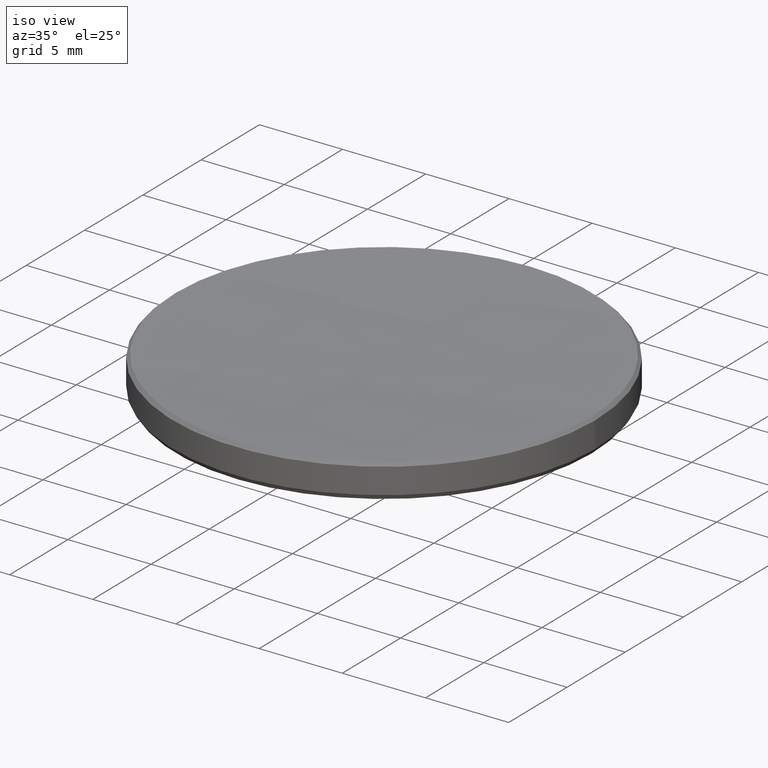
[diagram: clean part render]
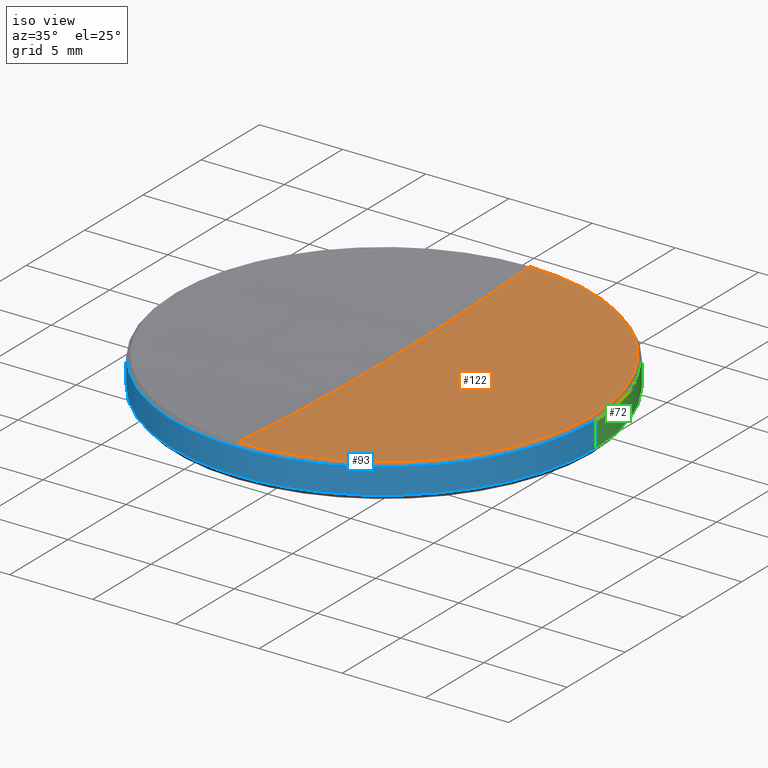
[diagram: same view with three faces highlighted in distinct colors, each labeled with its STEP entity id]
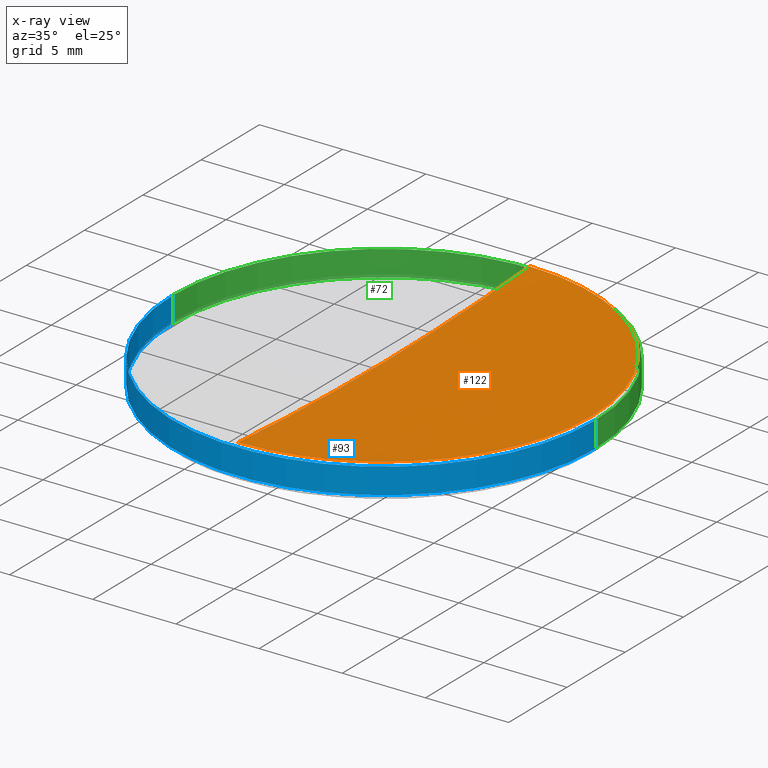
[diagram: x-ray of the same camera — body ghosted, the three highlighted faces saturated]
A machine part, iso view with three faces highlighted in distinct colors.
The next image is the same camera in x-ray (body ghosted, the three faces saturated) — at least one of them is partly hidden behind the body in this view.
Their STEP definitions:

[orange] entity #122 — the highlighted spherical surface has radius 182.19 mm.
#8 = EDGE_CURVE ( 'NONE', #210, #113, #48, .T. ) ;
#12 = DIRECTION ( 'NONE',  ( -0.000000000000000000, -0.000000000000000000, 1.000000000000000000 ) ) ;
#18 = DIRECTION ( 'NONE',  ( -0.000000000000000000, -0.000000000000000000, 1.000000000000000000 ) ) ;
#25 = ORIENTED_EDGE ( 'NONE', *, *, #183, .T. ) ;
#28 = AXIS2_PLACEMENT_3D ( 'NONE', #252, #18, #49 ) ;
#44 = EDGE_CURVE ( 'NONE', #113, #219, #174, .T. ) ;
#48 = CIRCLE ( 'NONE', #120, 182.1899999999999977 ) ;
#49 = DIRECTION ( 'NONE',  ( 1.000000000000000000, 0.000000000000000000, 0.000000000000000000 ) ) ;
#58 = CARTESIAN_POINT ( 'NONE',  ( 0.000000000000000000, 0.000000000000000000, 187.7468186791724918 ) ) ;
#61 = AXIS2_PLACEMENT_3D ( 'NONE', #245, #12, #322 ) ;
#64 = AXIS2_PLACEMENT_3D ( 'NONE', #58, #136, #109 ) ;
#94 = CARTESIAN_POINT ( 'NONE',  ( 0.000000000000000000, 1.115592001683281265E-14, 5.556818679172486952 ) ) ;
#99 = ORIENTED_EDGE ( 'NONE', *, *, #8, .T. ) ;
#101 = CIRCLE ( 'NONE', #64, 182.1899999999999977 ) ;
#109 = DIRECTION ( 'NONE',  ( 0.000000000000000000, 0.000000000000000000, -1.000000000000000000 ) ) ;
#110 = AXIS2_PLACEMENT_3D ( 'NONE', #128, #154, #305 ) ;
#113 = VERTEX_POINT ( 'NONE', #172 ) ;
#120 = AXIS2_PLACEMENT_3D ( 'NONE', #221, #326, #323 ) ;
#122 = ADVANCED_FACE ( 'NONE', ( #304 ), #148, .F. ) ;
#128 = CARTESIAN_POINT ( 'NONE',  ( 0.000000000000000000, 0.000000000000000000, 187.7468186791724918 ) ) ;
#136 = DIRECTION ( 'NONE',  ( 1.000000000000000000, 0.000000000000000000, 0.000000000000000000 ) ) ;
#148 = SPHERICAL_SURFACE ( 'NONE', #110, 182.1899999999999977 ) ;
#154 = DIRECTION ( 'NONE',  ( -1.000000000000000000, 0.000000000000000000, 0.000000000000000000 ) ) ;
#156 = ORIENTED_EDGE ( 'NONE', *, *, #278, .F. ) ;
#158 = ORIENTED_EDGE ( 'NONE', *, *, #44, .T. ) ;
#160 = CARTESIAN_POINT ( 'NONE',  ( 12.51297231911478569, 1.543849292379736932E-15, 5.987027680885187664 ) ) ;
#172 = CARTESIAN_POINT ( 'NONE',  ( -1.532397149842306047E-15, -12.51297231911454411, 5.987027680885187664 ) ) ;
#174 = CIRCLE ( 'NONE', #61, 12.51297231911478569 ) ;
#183 = EDGE_CURVE ( 'NONE', #219, #273, #209, .T. ) ;
#196 = EDGE_LOOP ( 'NONE', ( #156, #99, #158, #25 ) ) ;
#209 = CIRCLE ( 'NONE', #28, 12.51297231911478569 ) ;
#210 = VERTEX_POINT ( 'NONE', #94 ) ;
#219 = VERTEX_POINT ( 'NONE', #160 ) ;
#221 = CARTESIAN_POINT ( 'NONE',  ( 0.000000000000000000, 0.000000000000000000, 187.7468186791724918 ) ) ;
#245 = CARTESIAN_POINT ( 'NONE',  ( 0.000000000000000000, 0.000000000000000000, 5.987027680885187664 ) ) ;
#252 = CARTESIAN_POINT ( 'NONE',  ( 0.000000000000000000, 0.000000000000000000, 5.987027680885187664 ) ) ;
#273 = VERTEX_POINT ( 'NONE', #321 ) ;
#278 = EDGE_CURVE ( 'NONE', #210, #273, #101, .T. ) ;
#304 = FACE_OUTER_BOUND ( 'NONE', #196, .T. ) ;
#305 = DIRECTION ( 'NONE',  ( 0.000000000000000000, 1.000000000000000000, 0.000000000000000000 ) ) ;
#321 = CARTESIAN_POINT ( 'NONE',  ( 0.000000000000000000, 12.51297231911454411, 5.987027680885187664 ) ) ;
#322 = DIRECTION ( 'NONE',  ( 1.000000000000000000, 0.000000000000000000, 0.000000000000000000 ) ) ;
#323 = DIRECTION ( 'NONE',  ( -1.224646799147352961E-16, -1.000000000000000000, 0.000000000000000000 ) ) ;
#326 = DIRECTION ( 'NONE',  ( -1.000000000000000000, 1.224646799147353207E-16, 0.000000000000000000 ) ) ;

[blue] entity #93 — the highlighted cylindrical surface (partial cylindrical patch) has radius 12.7 mm, axis along (-0, -0, -1).
#20 = AXIS2_PLACEMENT_3D ( 'NONE', #163, #328, #292 ) ;
#21 = LINE ( 'NONE', #151, #181 ) ;
#22 = DIRECTION ( 'NONE',  ( -0.000000000000000000, -0.000000000000000000, -1.000000000000000000 ) ) ;
#33 = EDGE_CURVE ( 'NONE', #52, #309, #251, .T. ) ;
#46 = DIRECTION ( 'NONE',  ( -0.000000000000000000, -0.000000000000000000, -1.000000000000000000 ) ) ;
#50 = FACE_OUTER_BOUND ( 'NONE', #193, .T. ) ;
#52 = VERTEX_POINT ( 'NONE', #295 ) ;
#75 = VERTEX_POINT ( 'NONE', #205 ) ;
#77 = VERTEX_POINT ( 'NONE', #280 ) ;
#91 = CARTESIAN_POINT ( 'NONE',  ( 12.69999999999999929, 1.555301434917138433E-15, 4.253353967830220128 ) ) ;
#93 = ADVANCED_FACE ( 'NONE', ( #50 ), #225, .T. ) ;
#96 = DIRECTION ( 'NONE',  ( -1.000000000000000000, 0.000000000000000000, 0.000000000000000000 ) ) ;
#98 = LINE ( 'NONE', #228, #275 ) ;
#105 = ORIENTED_EDGE ( 'NONE', *, *, #123, .F. ) ;
#123 = EDGE_CURVE ( 'NONE', #75, #309, #21, .T. ) ;
#126 = CARTESIAN_POINT ( 'NONE',  ( 0.000000000000000000, 0.000000000000000000, 5.800000000000027356 ) ) ;
#132 = AXIS2_PLACEMENT_3D ( 'NONE', #126, #150, #274 ) ;
#150 = DIRECTION ( 'NONE',  ( 0.000000000000000000, 0.000000000000000000, -1.000000000000000000 ) ) ;
#151 = CARTESIAN_POINT ( 'NONE',  ( 12.69999999999999929, 1.555301434917138433E-15, 10.00000000000000000 ) ) ;
#153 = ORIENTED_EDGE ( 'NONE', *, *, #162, .T. ) ;
#155 = EDGE_CURVE ( 'NONE', #75, #77, #171, .T. ) ;
#162 = EDGE_CURVE ( 'NONE', #77, #52, #98, .T. ) ;
#163 = CARTESIAN_POINT ( 'NONE',  ( 0.000000000000000000, 0.000000000000000000, 4.253353967830220128 ) ) ;
#171 = CIRCLE ( 'NONE', #132, 12.69999999999999929 ) ;
#181 = VECTOR ( 'NONE', #22, 1000.000000000000000 ) ;
#193 = EDGE_LOOP ( 'NONE', ( #105, #236, #153, #297 ) ) ;
#205 = CARTESIAN_POINT ( 'NONE',  ( 12.69999999999999929, 1.555301434917138433E-15, 5.800000000000027356 ) ) ;
#206 = CARTESIAN_POINT ( 'NONE',  ( 0.000000000000000000, 0.000000000000000000, 10.00000000000000000 ) ) ;
#225 = CYLINDRICAL_SURFACE ( 'NONE', #317, 12.69999999999999929 ) ;
#227 = DIRECTION ( 'NONE',  ( -0.000000000000000000, -0.000000000000000000, -1.000000000000000000 ) ) ;
#228 = CARTESIAN_POINT ( 'NONE',  ( -12.69999999999999929, 0.000000000000000000, 10.00000000000000000 ) ) ;
#236 = ORIENTED_EDGE ( 'NONE', *, *, #155, .T. ) ;
#251 = CIRCLE ( 'NONE', #20, 12.69999999999999929 ) ;
#274 = DIRECTION ( 'NONE',  ( 1.000000000000000000, 0.000000000000000000, 0.000000000000000000 ) ) ;
#275 = VECTOR ( 'NONE', #46, 1000.000000000000000 ) ;
#280 = CARTESIAN_POINT ( 'NONE',  ( -12.69999999999999929, 0.000000000000000000, 5.800000000000027356 ) ) ;
#292 = DIRECTION ( 'NONE',  ( -1.000000000000000000, 0.000000000000000000, 0.000000000000000000 ) ) ;
#295 = CARTESIAN_POINT ( 'NONE',  ( -12.69999999999999929, 0.000000000000000000, 4.253353967830220128 ) ) ;
#297 = ORIENTED_EDGE ( 'NONE', *, *, #33, .T. ) ;
#309 = VERTEX_POINT ( 'NONE', #91 ) ;
#317 = AXIS2_PLACEMENT_3D ( 'NONE', #206, #227, #96 ) ;
#328 = DIRECTION ( 'NONE',  ( -0.000000000000000000, -0.000000000000000000, 1.000000000000000000 ) ) ;

[green] entity #72 — the highlighted cylindrical surface (partial cylindrical patch) has radius 12.7 mm, axis along (-0, -0, -1).
#19 = EDGE_CURVE ( 'NONE', #309, #52, #87, .T. ) ;
#21 = LINE ( 'NONE', #151, #181 ) ;
#22 = DIRECTION ( 'NONE',  ( -0.000000000000000000, -0.000000000000000000, -1.000000000000000000 ) ) ;
#26 = ORIENTED_EDGE ( 'NONE', *, *, #123, .T. ) ;
#46 = DIRECTION ( 'NONE',  ( -0.000000000000000000, -0.000000000000000000, -1.000000000000000000 ) ) ;
#52 = VERTEX_POINT ( 'NONE', #295 ) ;
#72 = ADVANCED_FACE ( 'NONE', ( #268 ), #168, .T. ) ;
#75 = VERTEX_POINT ( 'NONE', #205 ) ;
#77 = VERTEX_POINT ( 'NONE', #280 ) ;
#84 = DIRECTION ( 'NONE',  ( 1.000000000000000000, 0.000000000000000000, 0.000000000000000000 ) ) ;
#87 = CIRCLE ( 'NONE', #277, 12.69999999999999929 ) ;
#91 = CARTESIAN_POINT ( 'NONE',  ( 12.69999999999999929, 1.555301434917138433E-15, 4.253353967830220128 ) ) ;
#95 = CIRCLE ( 'NONE', #107, 12.69999999999999929 ) ;
#98 = LINE ( 'NONE', #228, #275 ) ;
#104 = AXIS2_PLACEMENT_3D ( 'NONE', #271, #244, #301 ) ;
#107 = AXIS2_PLACEMENT_3D ( 'NONE', #165, #195, #84 ) ;
#123 = EDGE_CURVE ( 'NONE', #75, #309, #21, .T. ) ;
#144 = DIRECTION ( 'NONE',  ( -1.000000000000000000, 0.000000000000000000, 0.000000000000000000 ) ) ;
#146 = ORIENTED_EDGE ( 'NONE', *, *, #19, .T. ) ;
#151 = CARTESIAN_POINT ( 'NONE',  ( 12.69999999999999929, 1.555301434917138433E-15, 10.00000000000000000 ) ) ;
#162 = EDGE_CURVE ( 'NONE', #77, #52, #98, .T. ) ;
#165 = CARTESIAN_POINT ( 'NONE',  ( 0.000000000000000000, 0.000000000000000000, 5.800000000000027356 ) ) ;
#168 = CYLINDRICAL_SURFACE ( 'NONE', #104, 12.69999999999999929 ) ;
#181 = VECTOR ( 'NONE', #22, 1000.000000000000000 ) ;
#195 = DIRECTION ( 'NONE',  ( 0.000000000000000000, 0.000000000000000000, -1.000000000000000000 ) ) ;
#205 = CARTESIAN_POINT ( 'NONE',  ( 12.69999999999999929, 1.555301434917138433E-15, 5.800000000000027356 ) ) ;
#208 = ORIENTED_EDGE ( 'NONE', *, *, #319, .T. ) ;
#217 = CARTESIAN_POINT ( 'NONE',  ( 0.000000000000000000, 0.000000000000000000, 4.253353967830220128 ) ) ;
#228 = CARTESIAN_POINT ( 'NONE',  ( -12.69999999999999929, 0.000000000000000000, 10.00000000000000000 ) ) ;
#244 = DIRECTION ( 'NONE',  ( -0.000000000000000000, -0.000000000000000000, -1.000000000000000000 ) ) ;
#249 = DIRECTION ( 'NONE',  ( -0.000000000000000000, -0.000000000000000000, 1.000000000000000000 ) ) ;
#268 = FACE_OUTER_BOUND ( 'NONE', #285, .T. ) ;
#271 = CARTESIAN_POINT ( 'NONE',  ( 0.000000000000000000, 0.000000000000000000, 10.00000000000000000 ) ) ;
#275 = VECTOR ( 'NONE', #46, 1000.000000000000000 ) ;
#277 = AXIS2_PLACEMENT_3D ( 'NONE', #217, #249, #144 ) ;
#280 = CARTESIAN_POINT ( 'NONE',  ( -12.69999999999999929, 0.000000000000000000, 5.800000000000027356 ) ) ;
#281 = ORIENTED_EDGE ( 'NONE', *, *, #162, .F. ) ;
#285 = EDGE_LOOP ( 'NONE', ( #208, #26, #146, #281 ) ) ;
#295 = CARTESIAN_POINT ( 'NONE',  ( -12.69999999999999929, 0.000000000000000000, 4.253353967830220128 ) ) ;
#301 = DIRECTION ( 'NONE',  ( -1.000000000000000000, 0.000000000000000000, 0.000000000000000000 ) ) ;
#309 = VERTEX_POINT ( 'NONE', #91 ) ;
#319 = EDGE_CURVE ( 'NONE', #77, #75, #95, .T. ) ;